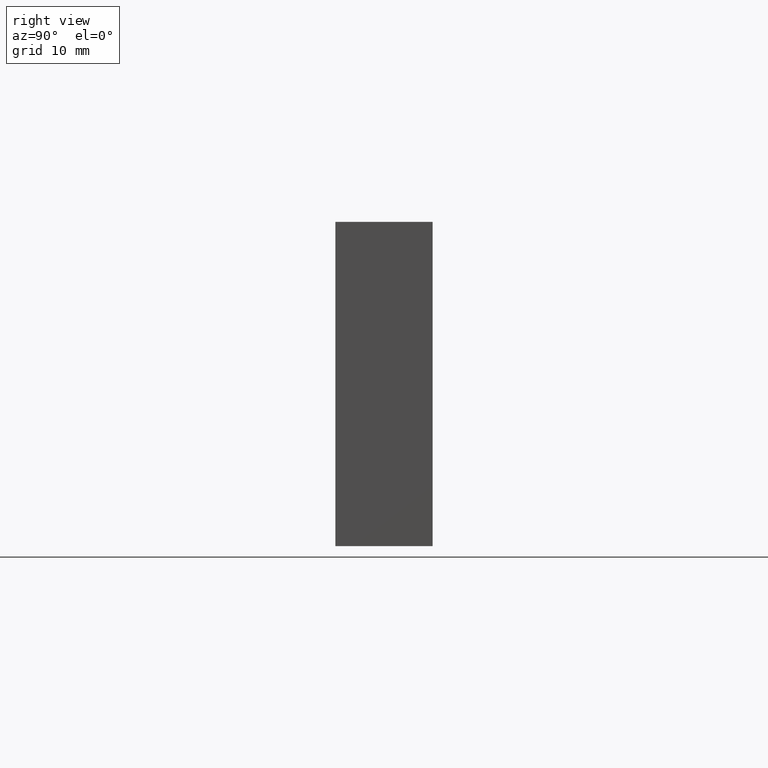
[diagram: clean part render]
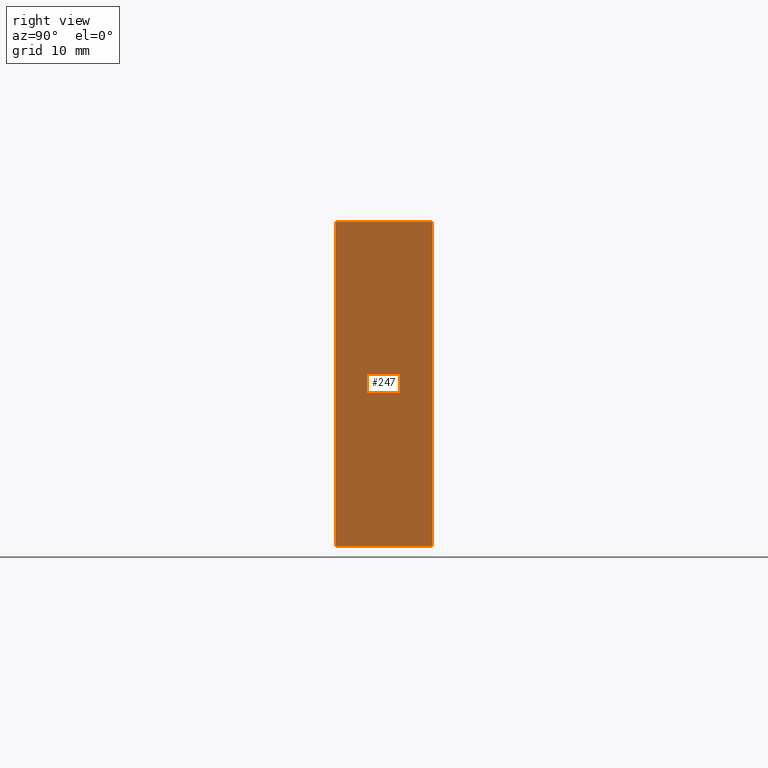
[diagram: same view with one face highlighted and labeled with its STEP entity id]
A machine part, right view. The second image highlights one B-rep face of the part: STEP entity #247.
In plain terms, the highlighted planar face has unit normal (1, 0, 0).
Its self-contained STEP definition (entity closure, byte-faithful):
#26=LINE('',#431,#43);
#27=LINE('',#434,#44);
#28=LINE('',#436,#45);
#29=LINE('',#437,#46);
#43=VECTOR('',#360,10.);
#44=VECTOR('',#363,10.);
#45=VECTOR('',#364,10.);
#46=VECTOR('',#365,10.);
#71=FACE_OUTER_BOUND('',#86,.T.);
#86=EDGE_LOOP('',(#205,#206,#207,#208));
#130=VERTEX_POINT('',#427);
#131=VERTEX_POINT('',#429);
#132=VERTEX_POINT('',#433);
#133=VERTEX_POINT('',#435);
#160=EDGE_CURVE('',#130,#131,#26,.T.);
#161=EDGE_CURVE('',#130,#132,#27,.T.);
#162=EDGE_CURVE('',#133,#131,#28,.T.);
#163=EDGE_CURVE('',#132,#133,#29,.T.);
#205=ORIENTED_EDGE('',*,*,#161,.F.);
#206=ORIENTED_EDGE('',*,*,#160,.T.);
#207=ORIENTED_EDGE('',*,*,#162,.F.);
#208=ORIENTED_EDGE('',*,*,#163,.F.);
#234=PLANE('',#295);
#247=ADVANCED_FACE('',(#71),#234,.T.);
#295=AXIS2_PLACEMENT_3D('',#432,#361,#362);
#360=DIRECTION('',(0.,1.,0.));
#361=DIRECTION('center_axis',(1.,0.,0.));
#362=DIRECTION('ref_axis',(0.,0.,-1.));
#363=DIRECTION('',(0.,0.,1.));
#364=DIRECTION('',(0.,0.,-1.));
#365=DIRECTION('',(0.,1.,0.));
#427=CARTESIAN_POINT('',(40.,0.,-20.));
#429=CARTESIAN_POINT('',(40.,12.,-20.));
#431=CARTESIAN_POINT('',(40.,0.,-20.));
#432=CARTESIAN_POINT('Origin',(40.,0.,20.));
#433=CARTESIAN_POINT('',(40.,0.,20.));
#434=CARTESIAN_POINT('',(40.,0.,-20.));
#435=CARTESIAN_POINT('',(40.,12.,20.));
#436=CARTESIAN_POINT('',(40.,12.,-20.));
#437=CARTESIAN_POINT('',(40.,0.,20.));